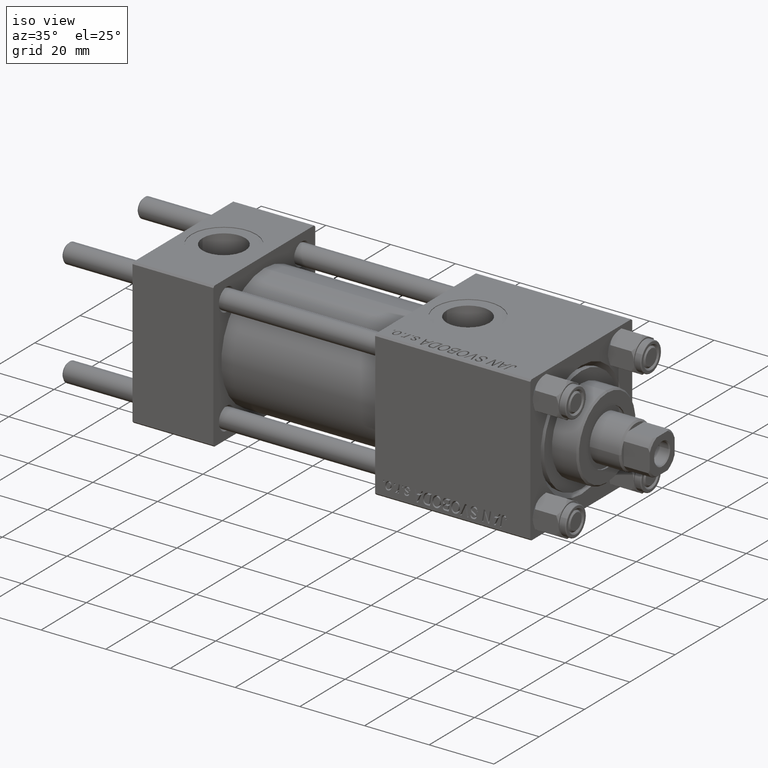
[diagram: clean part render]
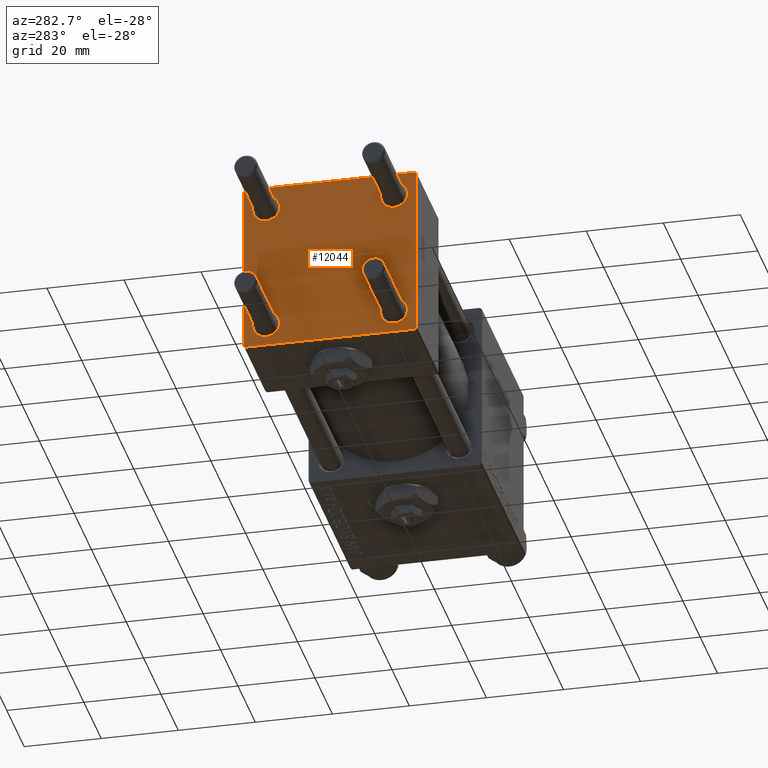
[diagram: tour spotlight — one face highlighted and labeled with its STEP entity id]
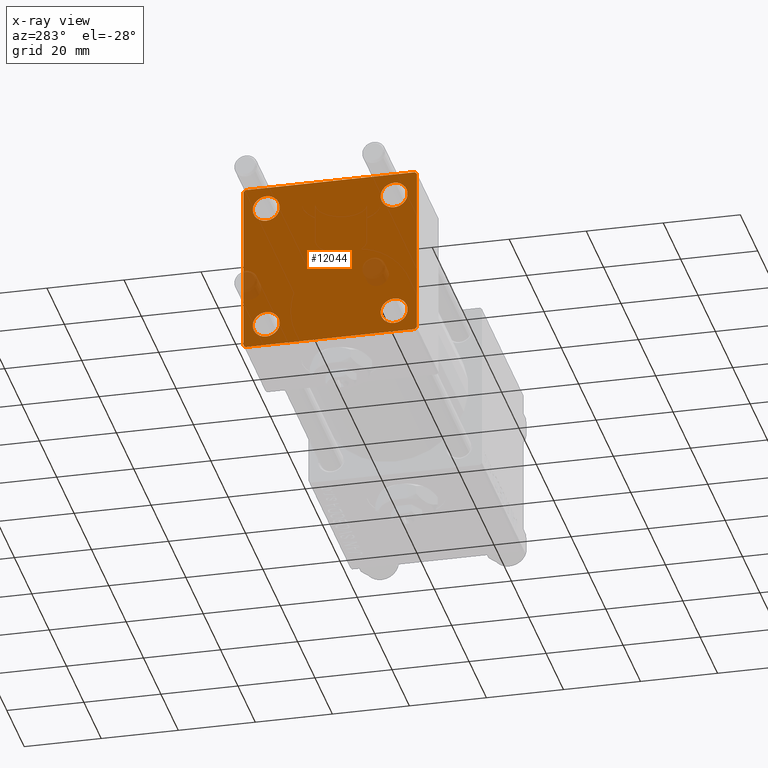
[diagram: x-ray of the same camera — body ghosted, this tour face saturated]
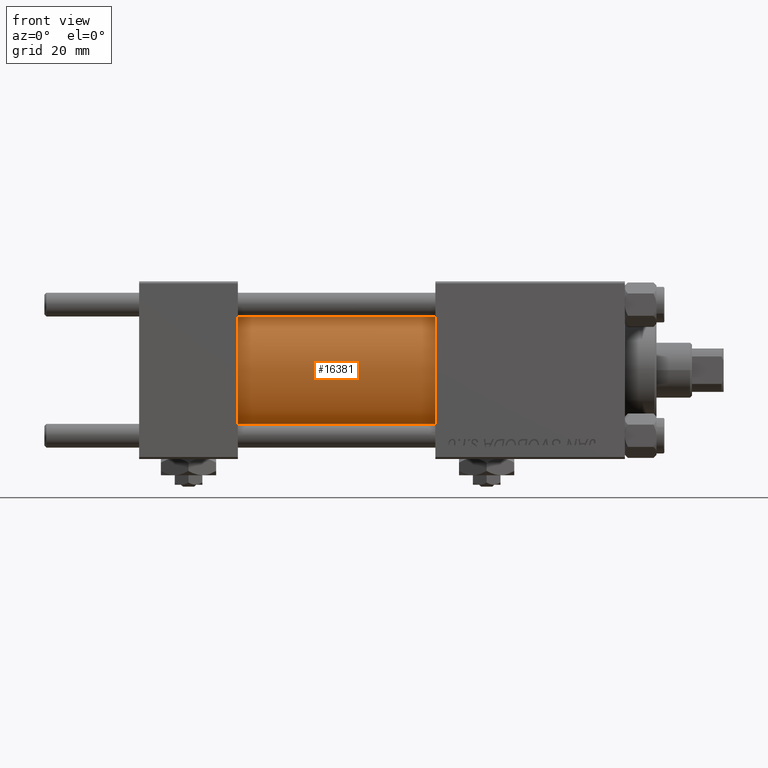
[diagram: tour spotlight — one face highlighted and labeled with its STEP entity id]
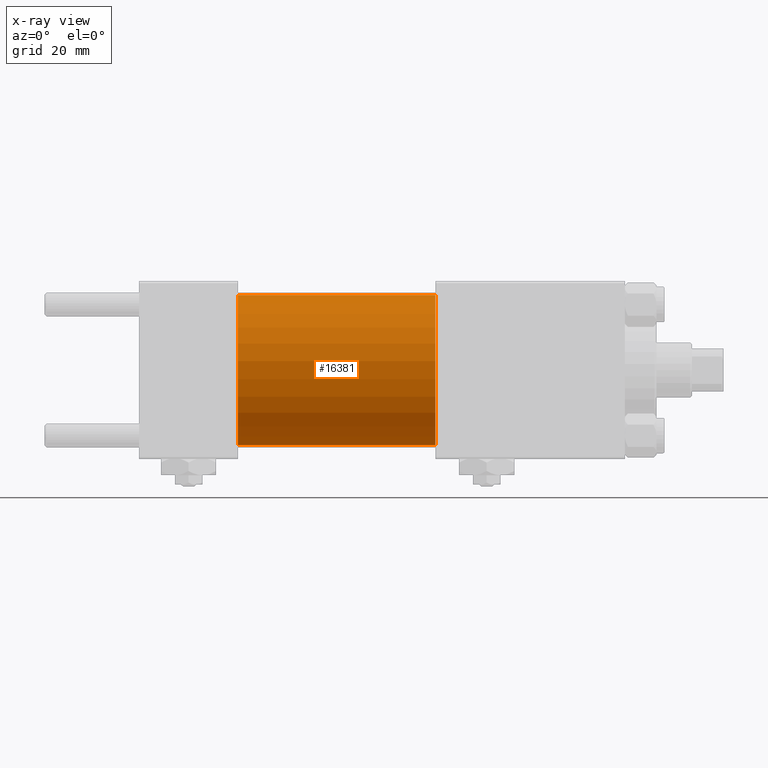
[diagram: x-ray of the same camera — body ghosted, this tour face saturated]
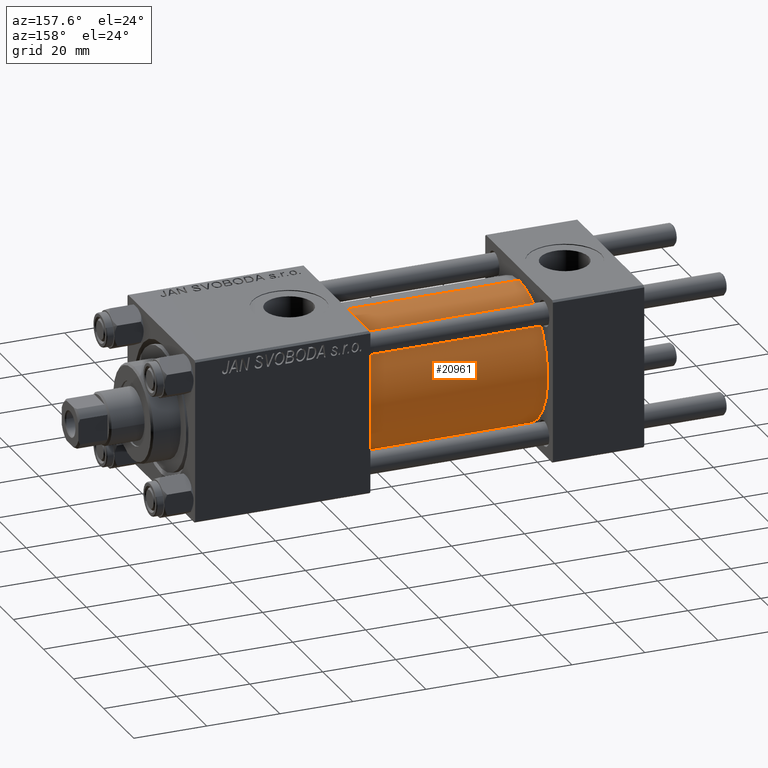
[diagram: tour spotlight — one face highlighted and labeled with its STEP entity id]
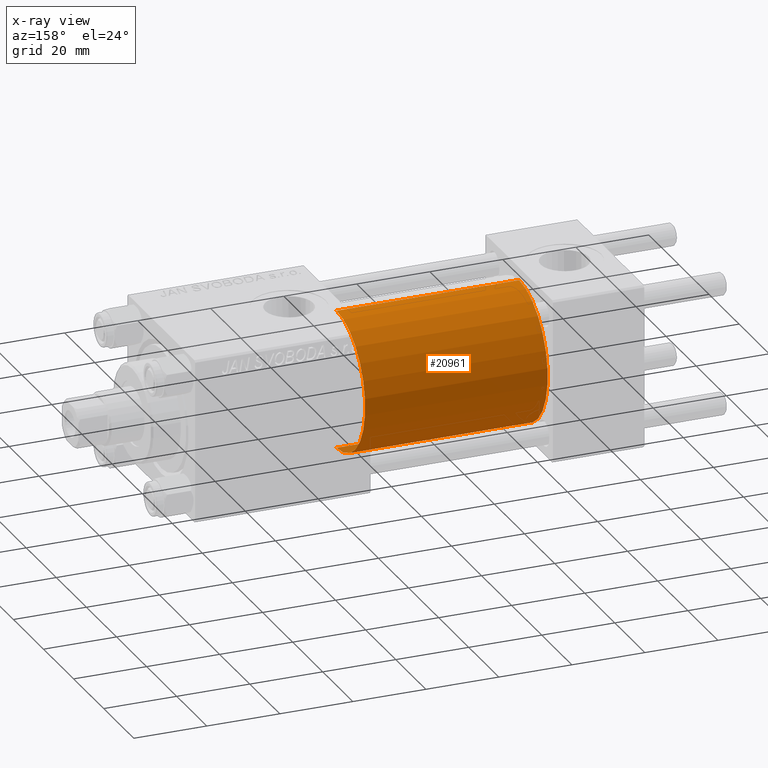
[diagram: x-ray of the same camera — body ghosted, this tour face saturated]
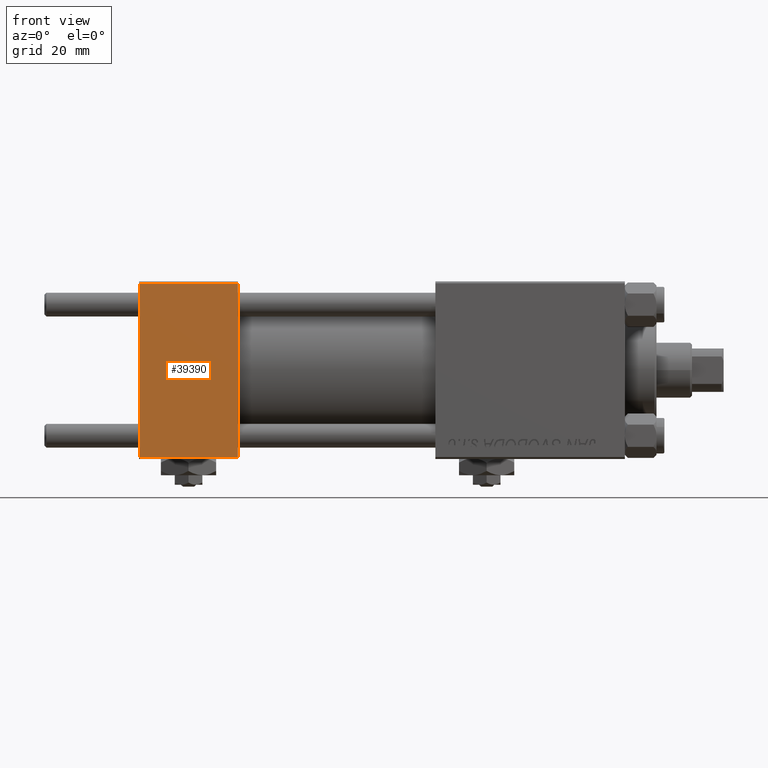
[diagram: tour spotlight — one face highlighted and labeled with its STEP entity id]
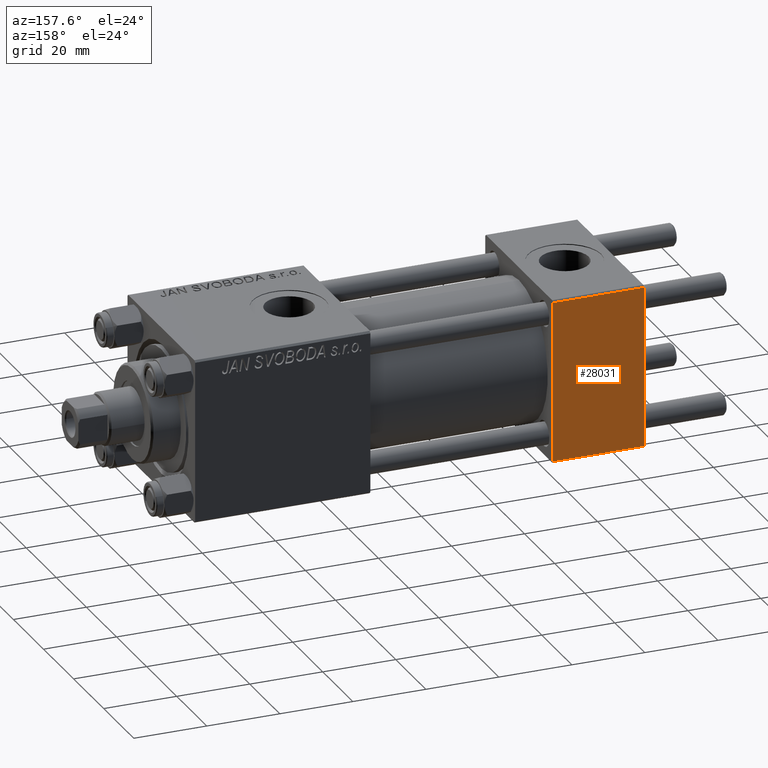
[diagram: tour spotlight — one face highlighted and labeled with its STEP entity id]
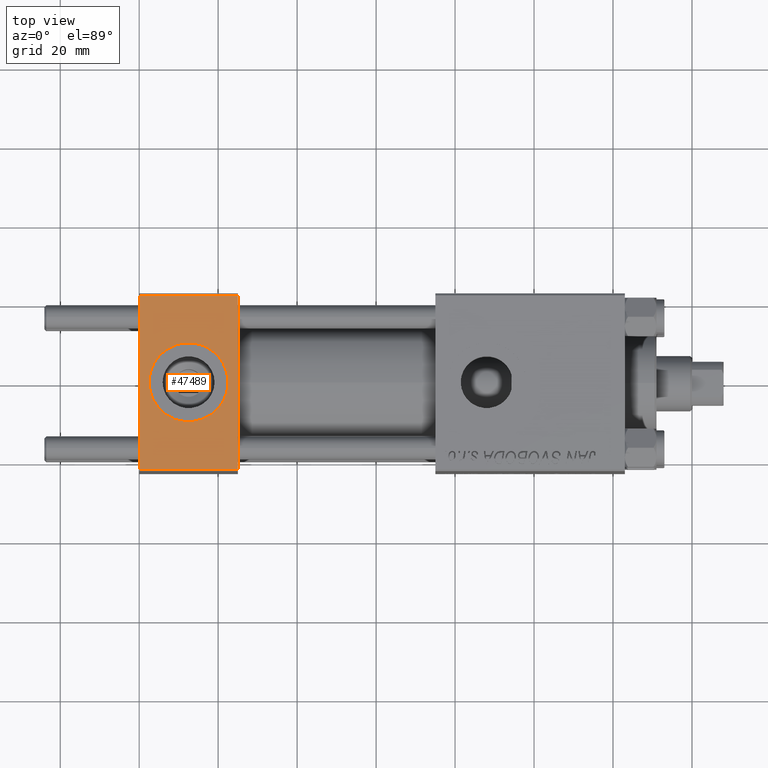
[diagram: tour spotlight — one face highlighted and labeled with its STEP entity id]
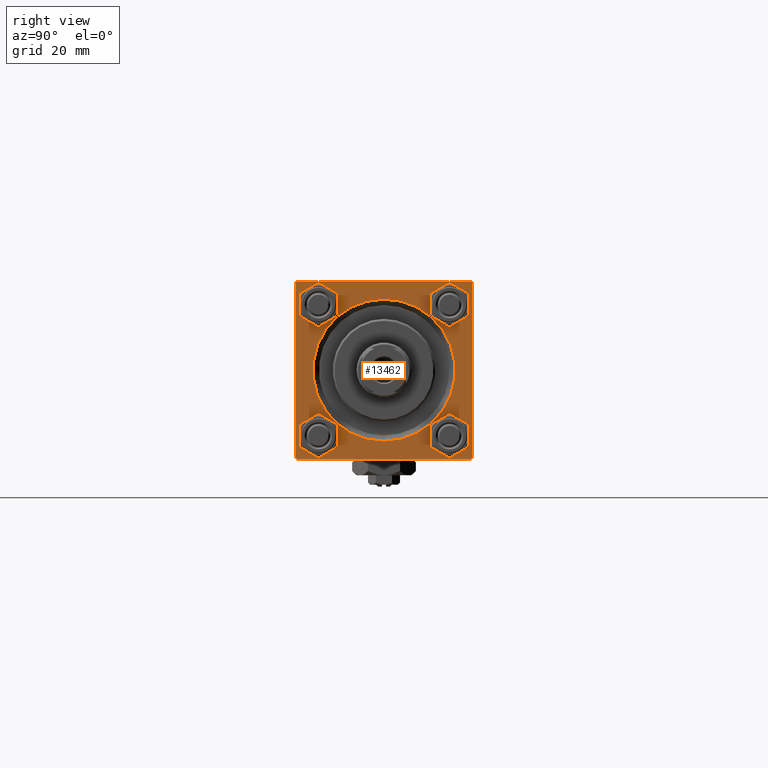
[diagram: tour spotlight — one face highlighted and labeled with its STEP entity id]
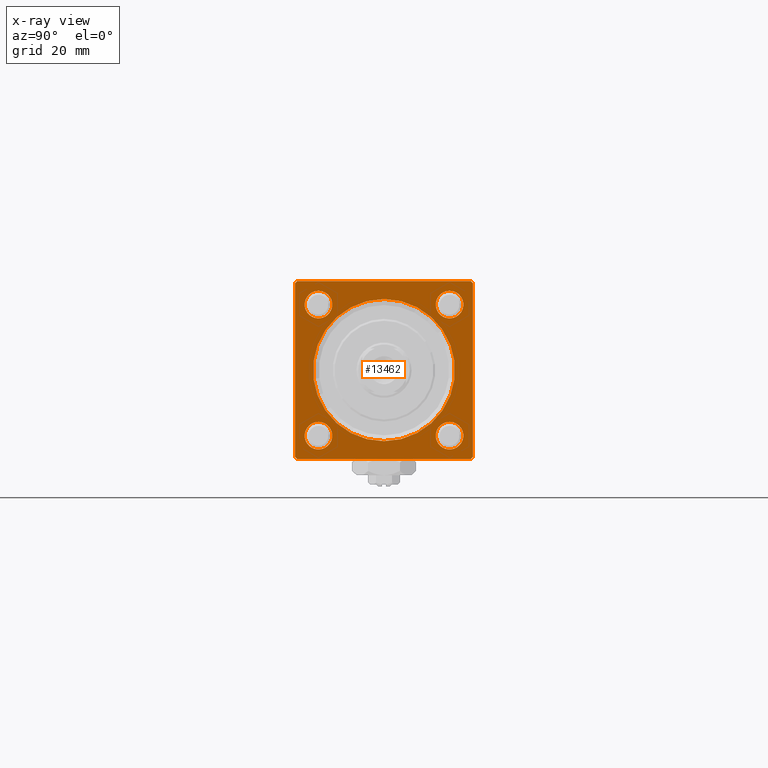
[diagram: x-ray of the same camera — body ghosted, this tour face saturated]
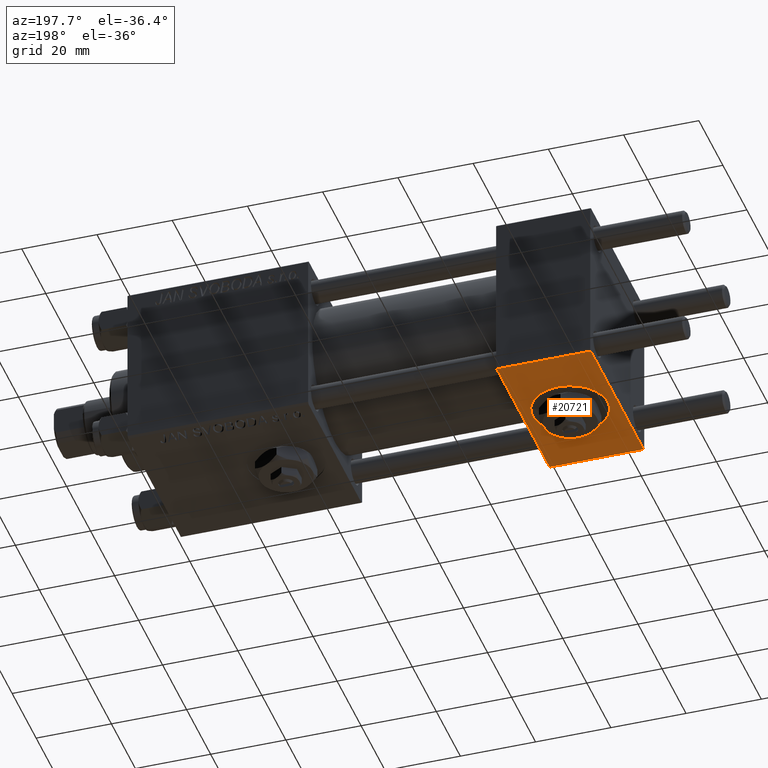
[diagram: tour spotlight — one face highlighted and labeled with its STEP entity id]
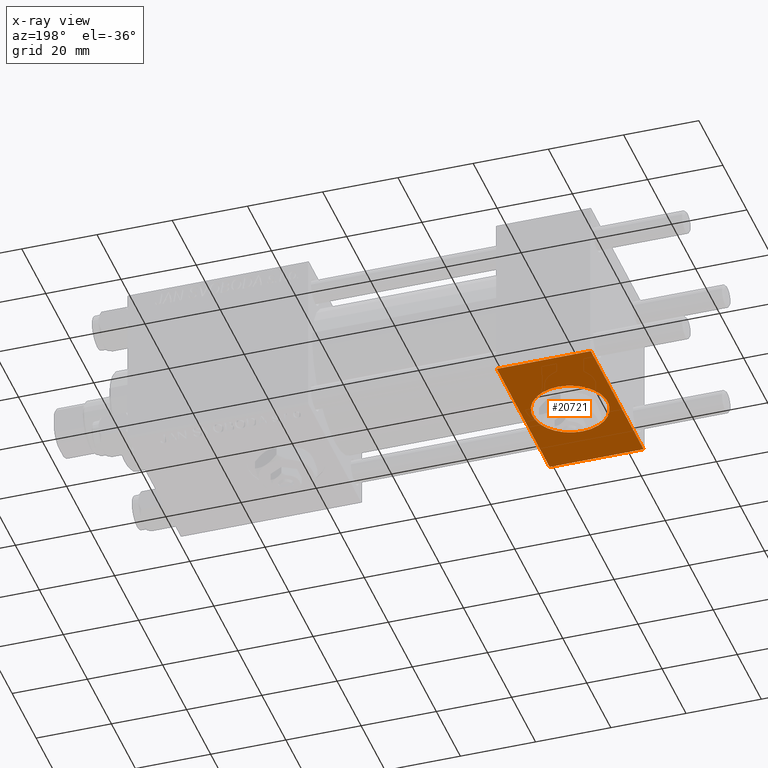
[diagram: x-ray of the same camera — body ghosted, this tour face saturated]
A machine part: a face-by-face anatomy tour. The part has 1232 B-rep faces; the first image is the clean iso view, then the 8 largest visible faces are spotlighted one at a time (largest first), each with its STEP entity span.

Face 1 — auxiliary view, entity #12044. An x-ray twin of the same camera follows (body ghosted, this face saturated) — the face is partly hidden behind the body. In plain terms, the highlighted planar face has unit normal (-1, 0, 0).
Definition (entity closure, byte-faithful):
#1049 = CARTESIAN_POINT ( 'NONE',  ( 0.000000000000000000, 22.50000000000000000, -21.99999999999996803 ) ) ;
#1425 = CARTESIAN_POINT ( 'NONE',  ( 0.000000000000000000, -22.50000000000000000, 22.50000000000000000 ) ) ;
#1604 = CIRCLE ( 'NONE', #21691, 3.499999999999996003 ) ;
#2339 = CARTESIAN_POINT ( 'NONE',  ( 0.000000000000000000, 22.50000000000000000, 22.50000000000000355 ) ) ;
#2547 = FACE_BOUND ( 'NONE', #49725, .T. ) ;
#2747 = CARTESIAN_POINT ( 'NONE',  ( 0.000000000000000000, -22.25000000000014566, -22.24999999999984013 ) ) ;
#2993 = CARTESIAN_POINT ( 'NONE',  ( 0.000000000000000000, 21.99999999999999289, -22.49999999999999645 ) ) ;
#3184 = LINE ( 'NONE', #26034, #12299 ) ;
#3549 = DIRECTION ( 'NONE',  ( 1.000000000000000000, -0.000000000000000000, 0.000000000000000000 ) ) ;
#3587 = VERTEX_POINT ( 'NONE', #28658 ) ;
#3740 = DIRECTION ( 'NONE',  ( 1.000000000000000000, -0.000000000000000000, 0.000000000000000000 ) ) ;
#3852 = EDGE_LOOP ( 'NONE', ( #15114, #42857 ) ) ;
#4041 = ORIENTED_EDGE ( 'NONE', *, *, #4329, .T. ) ;
#4269 = CARTESIAN_POINT ( 'NONE',  ( 0.000000000000000000, 16.59999999999999787, -16.60000000000000497 ) ) ;
#4329 = EDGE_CURVE ( 'NONE', #51466, #25926, #42590, .T. ) ;
#5871 = LINE ( 'NONE', #1425, #30097 ) ;
#5936 = DIRECTION ( 'NONE',  ( 0.000000000000000000, 0.000000000000000000, 1.000000000000000000 ) ) ;
#5973 = VERTEX_POINT ( 'NONE', #37163 ) ;
#6155 = DIRECTION ( 'NONE',  ( 1.000000000000000000, -0.000000000000000000, 0.000000000000000000 ) ) ;
#6885 = CARTESIAN_POINT ( 'NONE',  ( 0.000000000000000000, 16.59999999999999787, 16.60000000000000497 ) ) ;
#7355 = CARTESIAN_POINT ( 'NONE',  ( 0.000000000000000000, -16.59999999999999076, -16.60000000000000853 ) ) ;
#7398 = CARTESIAN_POINT ( 'NONE',  ( 0.000000000000000000, -16.59999999999999076, -13.10000000000001030 ) ) ;
#7952 = ORIENTED_EDGE ( 'NONE', *, *, #44585, .T. ) ;
#8149 = DIRECTION ( 'NONE',  ( 1.000000000000000000, -0.000000000000000000, 0.000000000000000000 ) ) ;
#8641 = FACE_BOUND ( 'NONE', #3852, .T. ) ;
#8797 = CIRCLE ( 'NONE', #28926, 3.499999999999996003 ) ;
#8971 = VECTOR ( 'NONE', #11320, 1000.000000000000000 ) ;
#9011 = DIRECTION ( 'NONE',  ( 0.000000000000000000, 0.000000000000000000, -1.000000000000000000 ) ) ;
#9399 = CIRCLE ( 'NONE', #51319, 3.499999999999996003 ) ;
#9532 = CARTESIAN_POINT ( 'NONE',  ( 0.000000000000000000, -22.50000000000000000, -21.99999999999997158 ) ) ;
#9593 = AXIS2_PLACEMENT_3D ( 'NONE', #40534, #3549, #19545 ) ;
#9815 = AXIS2_PLACEMENT_3D ( 'NONE', #35715, #8149, #24159 ) ;
#9854 = DIRECTION ( 'NONE',  ( 1.000000000000000000, -0.000000000000000000, 0.000000000000000000 ) ) ;
#10005 = CARTESIAN_POINT ( 'NONE',  ( -0.000000000000000000, -22.24999999999984013, 22.25000000000015277 ) ) ;
#10249 = VERTEX_POINT ( 'NONE', #21417 ) ;
#10376 = EDGE_CURVE ( 'NONE', #12619, #10249, #10461, .T. ) ;
#10440 = DIRECTION ( 'NONE',  ( 1.000000000000000000, -0.000000000000000000, 0.000000000000000000 ) ) ;
#10461 = CIRCLE ( 'NONE', #9593, 3.499999999999996003 ) ;
#11320 = DIRECTION ( 'NONE',  ( 0.000000000000000000, 0.000000000000000000, -1.000000000000000000 ) ) ;
#11620 = VECTOR ( 'NONE', #39182, 1000.000000000000000 ) ;
#11893 = EDGE_CURVE ( 'NONE', #3587, #45007, #8797, .T. ) ;
#12044 = ADVANCED_FACE ( 'NONE', ( #41914, #2547, #8641, #30350, #50040 ), #42427, .T. ) ;
#12299 = VECTOR ( 'NONE', #30478, 1000.000000000000114 ) ;
#12619 = VERTEX_POINT ( 'NONE', #30853 ) ;
#12688 = VERTEX_POINT ( 'NONE', #18007 ) ;
#12789 = VERTEX_POINT ( 'NONE', #19554 ) ;
#13691 = EDGE_CURVE ( 'NONE', #34426, #48493, #14297, .T. ) ;
#14019 = EDGE_LOOP ( 'NONE', ( #4041, #44815, #38352, #49643, #27150, #37655, #37682, #22686 ) ) ;
#14297 = LINE ( 'NONE', #2747, #35712 ) ;
#14645 = LINE ( 'NONE', #2339, #27626 ) ;
#15114 = ORIENTED_EDGE ( 'NONE', *, *, #31422, .T. ) ;
#15783 = EDGE_CURVE ( 'NONE', #12789, #51466, #3184, .T. ) ;
#16220 = VERTEX_POINT ( 'NONE', #33772 ) ;
#16259 = DIRECTION ( 'NONE',  ( 1.000000000000000000, -0.000000000000000000, 0.000000000000000000 ) ) ;
#16678 = EDGE_CURVE ( 'NONE', #45007, #3587, #28291, .T. ) ;
#18007 = CARTESIAN_POINT ( 'NONE',  ( 0.000000000000000000, -21.99999999999997868, 22.50000000000000000 ) ) ;
#18251 = VERTEX_POINT ( 'NONE', #23500 ) ;
#18832 = DIRECTION ( 'NONE',  ( 0.000000000000000000, -1.000000000000000000, -7.709882115452476934E-17 ) ) ;
#19545 = DIRECTION ( 'NONE',  ( 0.000000000000000000, 0.000000000000000000, 1.000000000000000000 ) ) ;
#19554 = CARTESIAN_POINT ( 'NONE',  ( 0.000000000000000000, 21.99999999999999289, 22.50000000000000355 ) ) ;
#20264 = CIRCLE ( 'NONE', #35326, 3.499999999999996003 ) ;
#20366 = EDGE_CURVE ( 'NONE', #5973, #44806, #1604, .T. ) ;
#21210 = CARTESIAN_POINT ( 'NONE',  ( 0.000000000000000000, 16.59999999999999787, -16.60000000000000497 ) ) ;
#21417 = CARTESIAN_POINT ( 'NONE',  ( 0.000000000000000000, -16.59999999999999076, 13.10000000000001030 ) ) ;
#21691 = AXIS2_PLACEMENT_3D ( 'NONE', #6885, #38131, #34195 ) ;
#22686 = ORIENTED_EDGE ( 'NONE', *, *, #15783, .T. ) ;
#22912 = DIRECTION ( 'NONE',  ( 0.000000000000000000, -0.7071067811865426878, 0.7071067811865524577 ) ) ;
#23380 = EDGE_CURVE ( 'NONE', #25926, #32500, #43375, .T. ) ;
#23418 = DIRECTION ( 'NONE',  ( 0.000000000000000000, 0.000000000000000000, 1.000000000000000000 ) ) ;
#23500 = CARTESIAN_POINT ( 'NONE',  ( 0.000000000000000000, -22.50000000000000000, 22.00000000000000000 ) ) ;
#23896 = VERTEX_POINT ( 'NONE', #44345 ) ;
#24159 = DIRECTION ( 'NONE',  ( 0.000000000000000000, 0.000000000000000000, 1.000000000000000000 ) ) ;
#24317 = ORIENTED_EDGE ( 'NONE', *, *, #16678, .T. ) ;
#25035 = CARTESIAN_POINT ( 'NONE',  ( 0.000000000000000000, 22.50000000000000000, -22.49999999999999645 ) ) ;
#25682 = DIRECTION ( 'NONE',  ( 0.000000000000000000, 0.000000000000000000, 1.000000000000000000 ) ) ;
#25838 = AXIS2_PLACEMENT_3D ( 'NONE', #45814, #9854, #5936 ) ;
#25926 = VERTEX_POINT ( 'NONE', #1049 ) ;
#26034 = CARTESIAN_POINT ( 'NONE',  ( 0.000000000000000000, 22.24999999999999645, 22.24999999999999645 ) ) ;
#26892 = EDGE_LOOP ( 'NONE', ( #37123, #7952 ) ) ;
#27150 = ORIENTED_EDGE ( 'NONE', *, *, #46691, .F. ) ;
#27626 = VECTOR ( 'NONE', #18832, 1000.000000000000000 ) ;
#28058 = EDGE_CURVE ( 'NONE', #18251, #12688, #38857, .T. ) ;
#28291 = CIRCLE ( 'NONE', #9815, 3.499999999999996003 ) ;
#28599 = CARTESIAN_POINT ( 'NONE',  ( 0.000000000000000000, 0.000000000000000000, 0.000000000000000000 ) ) ;
#28658 = CARTESIAN_POINT ( 'NONE',  ( 0.000000000000000000, -16.59999999999999076, -20.10000000000000497 ) ) ;
#28926 = AXIS2_PLACEMENT_3D ( 'NONE', #7355, #16259, #32273 ) ;
#29330 = DIRECTION ( 'NONE',  ( 0.000000000000000000, 0.000000000000000000, 1.000000000000000000 ) ) ;
#30097 = VECTOR ( 'NONE', #9011, 1000.000000000000000 ) ;
#30350 = FACE_BOUND ( 'NONE', #49548, .T. ) ;
#30478 = DIRECTION ( 'NONE',  ( 0.000000000000000000, 0.7071067811865474617, -0.7071067811865474617 ) ) ;
#30488 = EDGE_CURVE ( 'NONE', #32500, #34426, #40522, .T. ) ;
#30729 = DIRECTION ( 'NONE',  ( -0.000000000000000000, 0.7071067811865525687, 0.7071067811865425767 ) ) ;
#30853 = CARTESIAN_POINT ( 'NONE',  ( 0.000000000000000000, -16.59999999999999076, 20.10000000000000853 ) ) ;
#31422 = EDGE_CURVE ( 'NONE', #16220, #23896, #20264, .T. ) ;
#32273 = DIRECTION ( 'NONE',  ( 0.000000000000000000, 0.000000000000000000, 1.000000000000000000 ) ) ;
#32450 = EDGE_CURVE ( 'NONE', #44806, #5973, #9399, .T. ) ;
#32500 = VERTEX_POINT ( 'NONE', #2993 ) ;
#32990 = CARTESIAN_POINT ( 'NONE',  ( 0.000000000000000000, 16.59999999999999787, 16.60000000000000497 ) ) ;
#33170 = AXIS2_PLACEMENT_3D ( 'NONE', #28599, #46358, #37000 ) ;
#33772 = CARTESIAN_POINT ( 'NONE',  ( 0.000000000000000000, 16.59999999999999787, -13.10000000000000675 ) ) ;
#34195 = DIRECTION ( 'NONE',  ( 0.000000000000000000, 0.000000000000000000, 1.000000000000000000 ) ) ;
#34426 = VERTEX_POINT ( 'NONE', #51009 ) ;
#35326 = AXIS2_PLACEMENT_3D ( 'NONE', #4269, #3740, #23418 ) ;
#35712 = VECTOR ( 'NONE', #22912, 1000.000000000000000 ) ;
#35715 = CARTESIAN_POINT ( 'NONE',  ( 0.000000000000000000, -16.59999999999999076, -16.60000000000000853 ) ) ;
#35978 = CIRCLE ( 'NONE', #46063, 3.499999999999996003 ) ;
#36148 = VECTOR ( 'NONE', #41051, 1000.000000000000000 ) ;
#37000 = DIRECTION ( 'NONE',  ( -0.000000000000000000, 0.000000000000000000, 1.000000000000000000 ) ) ;
#37123 = ORIENTED_EDGE ( 'NONE', *, *, #10376, .T. ) ;
#37163 = CARTESIAN_POINT ( 'NONE',  ( 0.000000000000000000, 16.59999999999999787, 20.10000000000000142 ) ) ;
#37630 = ORIENTED_EDGE ( 'NONE', *, *, #20366, .T. ) ;
#37655 = ORIENTED_EDGE ( 'NONE', *, *, #28058, .T. ) ;
#37682 = ORIENTED_EDGE ( 'NONE', *, *, #48038, .F. ) ;
#38131 = DIRECTION ( 'NONE',  ( 1.000000000000000000, -0.000000000000000000, 0.000000000000000000 ) ) ;
#38352 = ORIENTED_EDGE ( 'NONE', *, *, #30488, .T. ) ;
#38857 = LINE ( 'NONE', #10005, #44473 ) ;
#39182 = DIRECTION ( 'NONE',  ( -0.000000000000000000, -0.7071067811865426878, -0.7071067811865524577 ) ) ;
#40522 = LINE ( 'NONE', #25035, #36148 ) ;
#40534 = CARTESIAN_POINT ( 'NONE',  ( 0.000000000000000000, -16.59999999999999076, 16.60000000000000853 ) ) ;
#41051 = DIRECTION ( 'NONE',  ( 0.000000000000000000, -1.000000000000000000, -2.312964634635742957E-16 ) ) ;
#41052 = CARTESIAN_POINT ( 'NONE',  ( 0.000000000000000000, 16.59999999999999787, 13.10000000000000675 ) ) ;
#41914 = FACE_BOUND ( 'NONE', #26892, .T. ) ;
#42427 = PLANE ( 'NONE',  #33170 ) ;
#42590 = LINE ( 'NONE', #47271, #8971 ) ;
#42857 = ORIENTED_EDGE ( 'NONE', *, *, #47262, .T. ) ;
#43375 = LINE ( 'NONE', #47572, #11620 ) ;
#43458 = ORIENTED_EDGE ( 'NONE', *, *, #32450, .T. ) ;
#44345 = CARTESIAN_POINT ( 'NONE',  ( 0.000000000000000000, 16.59999999999999787, -20.10000000000000142 ) ) ;
#44473 = VECTOR ( 'NONE', #30729, 999.9999999999998863 ) ;
#44585 = EDGE_CURVE ( 'NONE', #10249, #12619, #48451, .T. ) ;
#44806 = VERTEX_POINT ( 'NONE', #41052 ) ;
#44815 = ORIENTED_EDGE ( 'NONE', *, *, #23380, .T. ) ;
#45007 = VERTEX_POINT ( 'NONE', #7398 ) ;
#45495 = ORIENTED_EDGE ( 'NONE', *, *, #11893, .T. ) ;
#45814 = CARTESIAN_POINT ( 'NONE',  ( 0.000000000000000000, -16.59999999999999076, 16.60000000000000853 ) ) ;
#46063 = AXIS2_PLACEMENT_3D ( 'NONE', #21210, #10440, #25682 ) ;
#46358 = DIRECTION ( 'NONE',  ( -1.000000000000000000, 0.000000000000000000, -0.000000000000000000 ) ) ;
#46691 = EDGE_CURVE ( 'NONE', #18251, #48493, #5871, .T. ) ;
#47262 = EDGE_CURVE ( 'NONE', #23896, #16220, #35978, .T. ) ;
#47271 = CARTESIAN_POINT ( 'NONE',  ( 0.000000000000000000, 22.50000000000000000, 22.50000000000000355 ) ) ;
#47572 = CARTESIAN_POINT ( 'NONE',  ( 0.000000000000000000, 22.25000000000014566, -22.24999999999984013 ) ) ;
#48038 = EDGE_CURVE ( 'NONE', #12789, #12688, #14645, .T. ) ;
#48451 = CIRCLE ( 'NONE', #25838, 3.499999999999996003 ) ;
#48493 = VERTEX_POINT ( 'NONE', #9532 ) ;
#49548 = EDGE_LOOP ( 'NONE', ( #37630, #43458 ) ) ;
#49643 = ORIENTED_EDGE ( 'NONE', *, *, #13691, .T. ) ;
#49725 = EDGE_LOOP ( 'NONE', ( #24317, #45495 ) ) ;
#50040 = FACE_OUTER_BOUND ( 'NONE', #14019, .T. ) ;
#51009 = CARTESIAN_POINT ( 'NONE',  ( 0.000000000000000000, -21.99999999999997158, -22.50000000000000711 ) ) ;
#51319 = AXIS2_PLACEMENT_3D ( 'NONE', #32990, #6155, #29330 ) ;
#51401 = CARTESIAN_POINT ( 'NONE',  ( 0.000000000000000000, 22.50000000000000000, 21.99999999999999645 ) ) ;
#51466 = VERTEX_POINT ( 'NONE', #51401 ) ;

Face 2 — front view, entity #16381. An x-ray twin of the same camera follows (body ghosted, this face saturated) — the face is partly hidden behind the body. In plain terms, the highlighted cylindrical surface (partial cylindrical patch) has radius 19 mm, axis along (-1, -0, -0).
Definition (entity closure, byte-faithful):
#518 = CIRCLE ( 'NONE', #23155, 19.00000000000000000 ) ;
#1092 = ORIENTED_EDGE ( 'NONE', *, *, #16145, .T. ) ;
#1455 = CIRCLE ( 'NONE', #30773, 19.00000000000000000 ) ;
#1699 = CARTESIAN_POINT ( 'NONE',  ( 75.00000000000001421, 0.000000000000000000, 19.00000000000000000 ) ) ;
#3197 = CARTESIAN_POINT ( 'NONE',  ( 75.00000000000001421, 2.326828918379970970E-15, -19.00000000000000000 ) ) ;
#5442 = CARTESIAN_POINT ( 'NONE',  ( 25.00000000000000000, 0.000000000000000000, 0.000000000000000000 ) ) ;
#5618 = DIRECTION ( 'NONE',  ( -1.000000000000000000, -0.000000000000000000, -0.000000000000000000 ) ) ;
#7500 = FACE_OUTER_BOUND ( 'NONE', #20530, .T. ) ;
#7805 = CARTESIAN_POINT ( 'NONE',  ( 25.00000000000000000, 0.000000000000000000, 19.00000000000000000 ) ) ;
#8121 = CARTESIAN_POINT ( 'NONE',  ( 75.00000000000001421, 2.326828918379970970E-15, -19.00000000000000000 ) ) ;
#11554 = VECTOR ( 'NONE', #5618, 1000.000000000000000 ) ;
#16145 = EDGE_CURVE ( 'NONE', #24176, #51698, #1455, .T. ) ;
#16312 = CARTESIAN_POINT ( 'NONE',  ( 75.00000000000001421, 0.000000000000000000, 19.00000000000000000 ) ) ;
#16381 = ADVANCED_FACE ( 'NONE', ( #7500 ), #35578, .T. ) ;
#17583 = VECTOR ( 'NONE', #31782, 1000.000000000000000 ) ;
#18025 = CARTESIAN_POINT ( 'NONE',  ( 25.00000000000000000, 2.326828918379970970E-15, -19.00000000000000000 ) ) ;
#20530 = EDGE_LOOP ( 'NONE', ( #34571, #37621, #48798, #1092 ) ) ;
#22493 = EDGE_CURVE ( 'NONE', #27300, #51698, #31261, .T. ) ;
#22973 = DIRECTION ( 'NONE',  ( 0.000000000000000000, 0.000000000000000000, 1.000000000000000000 ) ) ;
#23155 = AXIS2_PLACEMENT_3D ( 'NONE', #48999, #41139, #49270 ) ;
#24176 = VERTEX_POINT ( 'NONE', #7805 ) ;
#24350 = DIRECTION ( 'NONE',  ( 0.000000000000000000, 0.000000000000000000, 1.000000000000000000 ) ) ;
#25388 = DIRECTION ( 'NONE',  ( 1.000000000000000000, -0.000000000000000000, 0.000000000000000000 ) ) ;
#26981 = VERTEX_POINT ( 'NONE', #16312 ) ;
#27300 = VERTEX_POINT ( 'NONE', #8121 ) ;
#29945 = AXIS2_PLACEMENT_3D ( 'NONE', #51586, #47653, #22973 ) ;
#30773 = AXIS2_PLACEMENT_3D ( 'NONE', #5442, #25388, #24350 ) ;
#31261 = LINE ( 'NONE', #3197, #17583 ) ;
#31782 = DIRECTION ( 'NONE',  ( -1.000000000000000000, -0.000000000000000000, -0.000000000000000000 ) ) ;
#34571 = ORIENTED_EDGE ( 'NONE', *, *, #22493, .F. ) ;
#35578 = CYLINDRICAL_SURFACE ( 'NONE', #29945, 19.00000000000000000 ) ;
#37109 = LINE ( 'NONE', #1699, #11554 ) ;
#37621 = ORIENTED_EDGE ( 'NONE', *, *, #39736, .F. ) ;
#39736 = EDGE_CURVE ( 'NONE', #26981, #27300, #518, .T. ) ;
#41139 = DIRECTION ( 'NONE',  ( 1.000000000000000000, 0.000000000000000000, 0.000000000000000000 ) ) ;
#44773 = EDGE_CURVE ( 'NONE', #26981, #24176, #37109, .T. ) ;
#47653 = DIRECTION ( 'NONE',  ( -1.000000000000000000, -0.000000000000000000, -0.000000000000000000 ) ) ;
#48798 = ORIENTED_EDGE ( 'NONE', *, *, #44773, .T. ) ;
#48999 = CARTESIAN_POINT ( 'NONE',  ( 75.00000000000001421, 0.000000000000000000, 0.000000000000000000 ) ) ;
#49270 = DIRECTION ( 'NONE',  ( 0.000000000000000000, 0.000000000000000000, -1.000000000000000000 ) ) ;
#51586 = CARTESIAN_POINT ( 'NONE',  ( 75.00000000000001421, 0.000000000000000000, 0.000000000000000000 ) ) ;
#51698 = VERTEX_POINT ( 'NONE', #18025 ) ;

Face 3 — auxiliary view, entity #20961. An x-ray twin of the same camera follows (body ghosted, this face saturated) — the face is partly hidden behind the body. In plain terms, the highlighted cylindrical surface (partial cylindrical patch) has radius 19 mm, axis along (-1, -0, -0).
Definition (entity closure, byte-faithful):
#680 = DIRECTION ( 'NONE',  ( 1.000000000000000000, -0.000000000000000000, 0.000000000000000000 ) ) ;
#1699 = CARTESIAN_POINT ( 'NONE',  ( 75.00000000000001421, 0.000000000000000000, 19.00000000000000000 ) ) ;
#3197 = CARTESIAN_POINT ( 'NONE',  ( 75.00000000000001421, 2.326828918379970970E-15, -19.00000000000000000 ) ) ;
#4677 = EDGE_CURVE ( 'NONE', #27300, #26981, #27570, .T. ) ;
#5618 = DIRECTION ( 'NONE',  ( -1.000000000000000000, -0.000000000000000000, -0.000000000000000000 ) ) ;
#7805 = CARTESIAN_POINT ( 'NONE',  ( 25.00000000000000000, 0.000000000000000000, 19.00000000000000000 ) ) ;
#8121 = CARTESIAN_POINT ( 'NONE',  ( 75.00000000000001421, 2.326828918379970970E-15, -19.00000000000000000 ) ) ;
#11554 = VECTOR ( 'NONE', #5618, 1000.000000000000000 ) ;
#12561 = AXIS2_PLACEMENT_3D ( 'NONE', #28743, #680, #32419 ) ;
#14943 = CARTESIAN_POINT ( 'NONE',  ( 75.00000000000001421, 0.000000000000000000, 0.000000000000000000 ) ) ;
#15886 = CIRCLE ( 'NONE', #12561, 19.00000000000000000 ) ;
#16312 = CARTESIAN_POINT ( 'NONE',  ( 75.00000000000001421, 0.000000000000000000, 19.00000000000000000 ) ) ;
#17583 = VECTOR ( 'NONE', #31782, 1000.000000000000000 ) ;
#17662 = ORIENTED_EDGE ( 'NONE', *, *, #4677, .F. ) ;
#17935 = EDGE_LOOP ( 'NONE', ( #17662, #36044, #47265, #33813 ) ) ;
#18025 = CARTESIAN_POINT ( 'NONE',  ( 25.00000000000000000, 2.326828918379970970E-15, -19.00000000000000000 ) ) ;
#19170 = DIRECTION ( 'NONE',  ( -1.000000000000000000, -0.000000000000000000, -0.000000000000000000 ) ) ;
#20961 = ADVANCED_FACE ( 'NONE', ( #30991 ), #35192, .T. ) ;
#22493 = EDGE_CURVE ( 'NONE', #27300, #51698, #31261, .T. ) ;
#23628 = CARTESIAN_POINT ( 'NONE',  ( 75.00000000000001421, 0.000000000000000000, 0.000000000000000000 ) ) ;
#24176 = VERTEX_POINT ( 'NONE', #7805 ) ;
#26981 = VERTEX_POINT ( 'NONE', #16312 ) ;
#27300 = VERTEX_POINT ( 'NONE', #8121 ) ;
#27570 = CIRCLE ( 'NONE', #42646, 19.00000000000000000 ) ;
#28743 = CARTESIAN_POINT ( 'NONE',  ( 25.00000000000000000, 0.000000000000000000, 0.000000000000000000 ) ) ;
#30952 = DIRECTION ( 'NONE',  ( 1.000000000000000000, 0.000000000000000000, 0.000000000000000000 ) ) ;
#30991 = FACE_OUTER_BOUND ( 'NONE', #17935, .T. ) ;
#31261 = LINE ( 'NONE', #3197, #17583 ) ;
#31782 = DIRECTION ( 'NONE',  ( -1.000000000000000000, -0.000000000000000000, -0.000000000000000000 ) ) ;
#32419 = DIRECTION ( 'NONE',  ( 0.000000000000000000, 0.000000000000000000, 1.000000000000000000 ) ) ;
#33813 = ORIENTED_EDGE ( 'NONE', *, *, #44773, .F. ) ;
#35192 = CYLINDRICAL_SURFACE ( 'NONE', #35968, 19.00000000000000000 ) ;
#35968 = AXIS2_PLACEMENT_3D ( 'NONE', #23628, #19170, #51202 ) ;
#36044 = ORIENTED_EDGE ( 'NONE', *, *, #22493, .T. ) ;
#37109 = LINE ( 'NONE', #1699, #11554 ) ;
#42646 = AXIS2_PLACEMENT_3D ( 'NONE', #14943, #30952, #46966 ) ;
#44773 = EDGE_CURVE ( 'NONE', #26981, #24176, #37109, .T. ) ;
#46966 = DIRECTION ( 'NONE',  ( 0.000000000000000000, 0.000000000000000000, -1.000000000000000000 ) ) ;
#47265 = ORIENTED_EDGE ( 'NONE', *, *, #51782, .T. ) ;
#51202 = DIRECTION ( 'NONE',  ( 0.000000000000000000, 0.000000000000000000, 1.000000000000000000 ) ) ;
#51698 = VERTEX_POINT ( 'NONE', #18025 ) ;
#51782 = EDGE_CURVE ( 'NONE', #51698, #24176, #15886, .T. ) ;

Face 4 — front view, entity #39390. In plain terms, the highlighted planar face has unit normal (0, 1, 0).
Definition (entity closure, byte-faithful):
#440 = ORIENTED_EDGE ( 'NONE', *, *, #46691, .T. ) ;
#483 = VECTOR ( 'NONE', #16601, 1000.000000000000000 ) ;
#1391 = AXIS2_PLACEMENT_3D ( 'NONE', #14214, #46235, #43054 ) ;
#1425 = CARTESIAN_POINT ( 'NONE',  ( 0.000000000000000000, -22.50000000000000000, 22.50000000000000000 ) ) ;
#1714 = VERTEX_POINT ( 'NONE', #15716 ) ;
#2197 = DIRECTION ( 'NONE',  ( 0.000000000000000000, 0.000000000000000000, -1.000000000000000000 ) ) ;
#5784 = VECTOR ( 'NONE', #2197, 1000.000000000000000 ) ;
#5871 = LINE ( 'NONE', #1425, #30097 ) ;
#8061 = CARTESIAN_POINT ( 'NONE',  ( 25.00000000000000000, -22.50000000000000000, 22.00000000000000000 ) ) ;
#9011 = DIRECTION ( 'NONE',  ( 0.000000000000000000, 0.000000000000000000, -1.000000000000000000 ) ) ;
#9532 = CARTESIAN_POINT ( 'NONE',  ( 0.000000000000000000, -22.50000000000000000, -21.99999999999997158 ) ) ;
#10262 = CARTESIAN_POINT ( 'NONE',  ( 25.00000000000000000, -22.50000000000000000, -21.99999999999998579 ) ) ;
#14214 = CARTESIAN_POINT ( 'NONE',  ( 25.00000000000000000, -22.50000000000000000, 22.50000000000000000 ) ) ;
#15716 = CARTESIAN_POINT ( 'NONE',  ( 25.00000000000000000, -22.50000000000000000, -21.99999999999997158 ) ) ;
#16482 = ORIENTED_EDGE ( 'NONE', *, *, #34482, .T. ) ;
#16601 = DIRECTION ( 'NONE',  ( -1.000000000000000000, 0.000000000000000000, 0.000000000000000000 ) ) ;
#17919 = LINE ( 'NONE', #26580, #5784 ) ;
#18251 = VERTEX_POINT ( 'NONE', #23500 ) ;
#20380 = EDGE_CURVE ( 'NONE', #38915, #1714, #17919, .T. ) ;
#23500 = CARTESIAN_POINT ( 'NONE',  ( 0.000000000000000000, -22.50000000000000000, 22.00000000000000000 ) ) ;
#26580 = CARTESIAN_POINT ( 'NONE',  ( 25.00000000000000000, -22.50000000000000000, 22.50000000000000000 ) ) ;
#27732 = EDGE_LOOP ( 'NONE', ( #440, #38519, #35095, #16482 ) ) ;
#30097 = VECTOR ( 'NONE', #9011, 1000.000000000000000 ) ;
#30917 = VECTOR ( 'NONE', #42280, 1000.000000000000000 ) ;
#32880 = CARTESIAN_POINT ( 'NONE',  ( 25.00000000000000000, -22.50000000000000000, 22.00000000000000000 ) ) ;
#34482 = EDGE_CURVE ( 'NONE', #38915, #18251, #40251, .T. ) ;
#34920 = FACE_OUTER_BOUND ( 'NONE', #27732, .T. ) ;
#35095 = ORIENTED_EDGE ( 'NONE', *, *, #20380, .F. ) ;
#38519 = ORIENTED_EDGE ( 'NONE', *, *, #49706, .T. ) ;
#38915 = VERTEX_POINT ( 'NONE', #8061 ) ;
#39390 = ADVANCED_FACE ( 'NONE', ( #34920 ), #50682, .F. ) ;
#40251 = LINE ( 'NONE', #32880, #483 ) ;
#42280 = DIRECTION ( 'NONE',  ( 1.000000000000000000, 0.000000000000000000, 0.000000000000000000 ) ) ;
#43054 = DIRECTION ( 'NONE',  ( 0.000000000000000000, -0.000000000000000000, 1.000000000000000000 ) ) ;
#46225 = LINE ( 'NONE', #10262, #30917 ) ;
#46235 = DIRECTION ( 'NONE',  ( -0.000000000000000000, 1.000000000000000000, 0.000000000000000000 ) ) ;
#46691 = EDGE_CURVE ( 'NONE', #18251, #48493, #5871, .T. ) ;
#48493 = VERTEX_POINT ( 'NONE', #9532 ) ;
#49706 = EDGE_CURVE ( 'NONE', #48493, #1714, #46225, .T. ) ;
#50682 = PLANE ( 'NONE',  #1391 ) ;

Face 5 — auxiliary view, entity #28031. In plain terms, the highlighted planar face has unit normal (0, 1, 0).
Definition (entity closure, byte-faithful):
#798 = EDGE_CURVE ( 'NONE', #51466, #25763, #34357, .T. ) ;
#830 = EDGE_CURVE ( 'NONE', #19737, #25926, #14419, .T. ) ;
#1049 = CARTESIAN_POINT ( 'NONE',  ( 0.000000000000000000, 22.50000000000000000, -21.99999999999996803 ) ) ;
#2977 = VECTOR ( 'NONE', #21370, 1000.000000000000000 ) ;
#4329 = EDGE_CURVE ( 'NONE', #51466, #25926, #42590, .T. ) ;
#8424 = AXIS2_PLACEMENT_3D ( 'NONE', #41770, #17883, #22061 ) ;
#8489 = ORIENTED_EDGE ( 'NONE', *, *, #798, .T. ) ;
#8971 = VECTOR ( 'NONE', #11320, 1000.000000000000000 ) ;
#11320 = DIRECTION ( 'NONE',  ( 0.000000000000000000, 0.000000000000000000, -1.000000000000000000 ) ) ;
#12402 = EDGE_CURVE ( 'NONE', #25763, #19737, #41331, .T. ) ;
#12710 = EDGE_LOOP ( 'NONE', ( #37235, #31234, #29086, #8489 ) ) ;
#13892 = DIRECTION ( 'NONE',  ( -1.000000000000000000, 0.000000000000000000, 0.000000000000000000 ) ) ;
#14419 = LINE ( 'NONE', #46687, #18082 ) ;
#17883 = DIRECTION ( 'NONE',  ( -0.000000000000000000, 1.000000000000000000, 0.000000000000000000 ) ) ;
#18082 = VECTOR ( 'NONE', #13892, 1000.000000000000000 ) ;
#19737 = VERTEX_POINT ( 'NONE', #36427 ) ;
#21370 = DIRECTION ( 'NONE',  ( 0.000000000000000000, 0.000000000000000000, -1.000000000000000000 ) ) ;
#22061 = DIRECTION ( 'NONE',  ( 0.000000000000000000, -0.000000000000000000, 1.000000000000000000 ) ) ;
#25763 = VERTEX_POINT ( 'NONE', #41789 ) ;
#25926 = VERTEX_POINT ( 'NONE', #1049 ) ;
#26488 = CARTESIAN_POINT ( 'NONE',  ( 25.00000000000000000, 22.50000000000000000, 21.99999999999999645 ) ) ;
#28031 = ADVANCED_FACE ( 'NONE', ( #42286 ), #42811, .T. ) ;
#29086 = ORIENTED_EDGE ( 'NONE', *, *, #4329, .F. ) ;
#29517 = CARTESIAN_POINT ( 'NONE',  ( 25.00000000000000000, 22.50000000000000000, 22.50000000000000355 ) ) ;
#31234 = ORIENTED_EDGE ( 'NONE', *, *, #830, .T. ) ;
#34357 = LINE ( 'NONE', #26488, #38210 ) ;
#36427 = CARTESIAN_POINT ( 'NONE',  ( 25.00000000000000000, 22.50000000000000000, -21.99999999999996803 ) ) ;
#37235 = ORIENTED_EDGE ( 'NONE', *, *, #12402, .T. ) ;
#38210 = VECTOR ( 'NONE', #50377, 1000.000000000000000 ) ;
#41331 = LINE ( 'NONE', #29517, #2977 ) ;
#41770 = CARTESIAN_POINT ( 'NONE',  ( 25.00000000000000000, 22.50000000000000000, 22.50000000000000355 ) ) ;
#41789 = CARTESIAN_POINT ( 'NONE',  ( 25.00000000000000000, 22.50000000000000000, 21.99999999999999645 ) ) ;
#42286 = FACE_OUTER_BOUND ( 'NONE', #12710, .T. ) ;
#42590 = LINE ( 'NONE', #47271, #8971 ) ;
#42811 = PLANE ( 'NONE',  #8424 ) ;
#46687 = CARTESIAN_POINT ( 'NONE',  ( 25.00000000000000000, 22.50000000000000000, -21.99999999999998224 ) ) ;
#47271 = CARTESIAN_POINT ( 'NONE',  ( 0.000000000000000000, 22.50000000000000000, 22.50000000000000355 ) ) ;
#50377 = DIRECTION ( 'NONE',  ( 1.000000000000000000, 0.000000000000000000, 0.000000000000000000 ) ) ;
#51401 = CARTESIAN_POINT ( 'NONE',  ( 0.000000000000000000, 22.50000000000000000, 21.99999999999999645 ) ) ;
#51466 = VERTEX_POINT ( 'NONE', #51401 ) ;

Face 6 — top view, entity #47489. In plain terms, the highlighted planar face has unit normal (0, 0, -1).
Definition (entity closure, byte-faithful):
#860 = VERTEX_POINT ( 'NONE', #6030 ) ;
#1378 = EDGE_CURVE ( 'NONE', #5939, #45728, #43090, .T. ) ;
#1700 = CARTESIAN_POINT ( 'NONE',  ( 25.00000000000000000, 22.50000000000000000, 22.50000000000000355 ) ) ;
#2080 = EDGE_CURVE ( 'NONE', #860, #5087, #26522, .T. ) ;
#2226 = VECTOR ( 'NONE', #11330, 1000.000000000000000 ) ;
#2339 = CARTESIAN_POINT ( 'NONE',  ( 0.000000000000000000, 22.50000000000000000, 22.50000000000000355 ) ) ;
#3833 = DIRECTION ( 'NONE',  ( -1.000000000000000000, 0.000000000000000000, 0.000000000000000000 ) ) ;
#3879 = AXIS2_PLACEMENT_3D ( 'NONE', #34839, #26714, #14894 ) ;
#5087 = VERTEX_POINT ( 'NONE', #39554 ) ;
#5378 = VECTOR ( 'NONE', #3833, 1000.000000000000000 ) ;
#5529 = CIRCLE ( 'NONE', #14734, 9.999999999999998224 ) ;
#5939 = VERTEX_POINT ( 'NONE', #48972 ) ;
#6030 = CARTESIAN_POINT ( 'NONE',  ( 22.50000000000000000, -1.734723475976807094E-15, 22.50000000000000000 ) ) ;
#6659 = AXIS2_PLACEMENT_3D ( 'NONE', #1700, #26077, #17933 ) ;
#8285 = DIRECTION ( 'NONE',  ( 1.000000000000000000, 0.000000000000000000, 0.000000000000000000 ) ) ;
#8468 = DIRECTION ( 'NONE',  ( 0.000000000000000000, 0.000000000000000000, 1.000000000000000000 ) ) ;
#10078 = EDGE_LOOP ( 'NONE', ( #49859, #15344, #13197, #34567 ) ) ;
#11330 = DIRECTION ( 'NONE',  ( 0.000000000000000000, -1.000000000000000000, -7.709882115452476934E-17 ) ) ;
#12688 = VERTEX_POINT ( 'NONE', #18007 ) ;
#12789 = VERTEX_POINT ( 'NONE', #19554 ) ;
#13197 = ORIENTED_EDGE ( 'NONE', *, *, #1378, .F. ) ;
#13224 = FACE_BOUND ( 'NONE', #47152, .T. ) ;
#13843 = EDGE_CURVE ( 'NONE', #5087, #860, #5529, .T. ) ;
#14645 = LINE ( 'NONE', #2339, #27626 ) ;
#14734 = AXIS2_PLACEMENT_3D ( 'NONE', #35779, #8468, #32093 ) ;
#14894 = DIRECTION ( 'NONE',  ( 1.000000000000000000, 0.000000000000000000, 0.000000000000000000 ) ) ;
#15344 = ORIENTED_EDGE ( 'NONE', *, *, #33536, .T. ) ;
#17520 = ORIENTED_EDGE ( 'NONE', *, *, #13843, .F. ) ;
#17933 = DIRECTION ( 'NONE',  ( 0.000000000000000000, 1.000000000000000000, 7.709882115452476934E-17 ) ) ;
#18007 = CARTESIAN_POINT ( 'NONE',  ( 0.000000000000000000, -21.99999999999997868, 22.50000000000000000 ) ) ;
#18832 = DIRECTION ( 'NONE',  ( 0.000000000000000000, -1.000000000000000000, -7.709882115452476934E-17 ) ) ;
#19554 = CARTESIAN_POINT ( 'NONE',  ( 0.000000000000000000, 21.99999999999999289, 22.50000000000000355 ) ) ;
#20418 = VECTOR ( 'NONE', #8285, 1000.000000000000000 ) ;
#21348 = FACE_OUTER_BOUND ( 'NONE', #10078, .T. ) ;
#21402 = ORIENTED_EDGE ( 'NONE', *, *, #2080, .F. ) ;
#25341 = LINE ( 'NONE', #41344, #20418 ) ;
#26077 = DIRECTION ( 'NONE',  ( 0.000000000000000000, 7.709882115452476934E-17, -1.000000000000000000 ) ) ;
#26522 = CIRCLE ( 'NONE', #3879, 9.999999999999998224 ) ;
#26714 = DIRECTION ( 'NONE',  ( 0.000000000000000000, 0.000000000000000000, 1.000000000000000000 ) ) ;
#27626 = VECTOR ( 'NONE', #18832, 1000.000000000000000 ) ;
#28877 = CARTESIAN_POINT ( 'NONE',  ( 25.00000000000000000, -21.99999999999997868, 22.50000000000000000 ) ) ;
#32093 = DIRECTION ( 'NONE',  ( 1.000000000000000000, 0.000000000000000000, 0.000000000000000000 ) ) ;
#33458 = EDGE_CURVE ( 'NONE', #5939, #12789, #35588, .T. ) ;
#33536 = EDGE_CURVE ( 'NONE', #12688, #45728, #25341, .T. ) ;
#34567 = ORIENTED_EDGE ( 'NONE', *, *, #33458, .T. ) ;
#34839 = CARTESIAN_POINT ( 'NONE',  ( 12.50000000000000000, -1.734723475976807094E-15, 22.50000000000000000 ) ) ;
#35588 = LINE ( 'NONE', #51598, #5378 ) ;
#35779 = CARTESIAN_POINT ( 'NONE',  ( 12.50000000000000000, -1.734723475976807094E-15, 22.50000000000000000 ) ) ;
#39428 = CARTESIAN_POINT ( 'NONE',  ( 25.00000000000000000, 22.50000000000000000, 22.50000000000000355 ) ) ;
#39554 = CARTESIAN_POINT ( 'NONE',  ( 2.500000000000003997, -5.100766768294543310E-16, 22.50000000000000000 ) ) ;
#41344 = CARTESIAN_POINT ( 'NONE',  ( 25.00000000000000000, -21.99999999999999289, 22.50000000000000000 ) ) ;
#43090 = LINE ( 'NONE', #39428, #2226 ) ;
#45728 = VERTEX_POINT ( 'NONE', #28877 ) ;
#47152 = EDGE_LOOP ( 'NONE', ( #21402, #17520 ) ) ;
#47489 = ADVANCED_FACE ( 'NONE', ( #13224, #21348 ), #48912, .F. ) ;
#48038 = EDGE_CURVE ( 'NONE', #12789, #12688, #14645, .T. ) ;
#48912 = PLANE ( 'NONE',  #6659 ) ;
#48972 = CARTESIAN_POINT ( 'NONE',  ( 25.00000000000000000, 21.99999999999999289, 22.50000000000000355 ) ) ;
#49859 = ORIENTED_EDGE ( 'NONE', *, *, #48038, .T. ) ;
#51598 = CARTESIAN_POINT ( 'NONE',  ( 0.000000000000000000, 21.99999999999999289, 22.50000000000000355 ) ) ;

Face 7 — right view, entity #13462. An x-ray twin of the same camera follows (body ghosted, this face saturated) — the face is partly hidden behind the body. In plain terms, the highlighted planar face has unit normal (-1, 0, 0).
Definition (entity closure, byte-faithful):
#270 = CARTESIAN_POINT ( 'NONE',  ( 123.0000000000000142, 21.99999999999996092, 22.50000000000000355 ) ) ;
#317 = EDGE_LOOP ( 'NONE', ( #46506, #14236 ) ) ;
#1112 = VERTEX_POINT ( 'NONE', #20299 ) ;
#1668 = EDGE_CURVE ( 'NONE', #8510, #48887, #45772, .T. ) ;
#1845 = DIRECTION ( 'NONE',  ( 0.000000000000000000, 0.000000000000000000, 1.000000000000000000 ) ) ;
#2131 = ORIENTED_EDGE ( 'NONE', *, *, #38039, .T. ) ;
#2364 = DIRECTION ( 'NONE',  ( -0.000000000000000000, 0.7071067811865573427, 0.7071067811865378028 ) ) ;
#2803 = FACE_OUTER_BOUND ( 'NONE', #33914, .T. ) ;
#3123 = ORIENTED_EDGE ( 'NONE', *, *, #4896, .T. ) ;
#3532 = ORIENTED_EDGE ( 'NONE', *, *, #24295, .T. ) ;
#3558 = EDGE_CURVE ( 'NONE', #23849, #10846, #20506, .T. ) ;
#4896 = EDGE_CURVE ( 'NONE', #10846, #12421, #37753, .T. ) ;
#5177 = DIRECTION ( 'NONE',  ( 0.000000000000000000, -1.000000000000000000, -2.312964634635742957E-16 ) ) ;
#6320 = AXIS2_PLACEMENT_3D ( 'NONE', #29245, #33447, #17158 ) ;
#6422 = DIRECTION ( 'NONE',  ( 0.000000000000000000, 0.000000000000000000, 1.000000000000000000 ) ) ;
#6731 = FACE_BOUND ( 'NONE', #31638, .T. ) ;
#7464 = CIRCLE ( 'NONE', #37651, 3.500000000000031086 ) ;
#7474 = CARTESIAN_POINT ( 'NONE',  ( 123.0000000000000142, 16.59999999999999787, -16.60000000000000497 ) ) ;
#7733 = EDGE_CURVE ( 'NONE', #24519, #1112, #49852, .T. ) ;
#7895 = VERTEX_POINT ( 'NONE', #47192 ) ;
#8277 = LINE ( 'NONE', #24549, #22589 ) ;
#8510 = VERTEX_POINT ( 'NONE', #11118 ) ;
#8985 = ORIENTED_EDGE ( 'NONE', *, *, #3558, .T. ) ;
#9024 = VERTEX_POINT ( 'NONE', #48954 ) ;
#9143 = AXIS2_PLACEMENT_3D ( 'NONE', #45639, #46176, #1845 ) ;
#9703 = CIRCLE ( 'NONE', #38225, 3.500000000000031086 ) ;
#10052 = AXIS2_PLACEMENT_3D ( 'NONE', #36480, #25216, #21000 ) ;
#10179 = CARTESIAN_POINT ( 'NONE',  ( 123.0000000000000142, -21.99999999999998224, 22.49999999999999289 ) ) ;
#10259 = ORIENTED_EDGE ( 'NONE', *, *, #13375, .T. ) ;
#10665 = CARTESIAN_POINT ( 'NONE',  ( 123.0000000000000142, 0.000000000000000000, 0.000000000000000000 ) ) ;
#10711 = VERTEX_POINT ( 'NONE', #51703 ) ;
#10757 = DIRECTION ( 'NONE',  ( 0.000000000000000000, 0.000000000000000000, 1.000000000000000000 ) ) ;
#10846 = VERTEX_POINT ( 'NONE', #33037 ) ;
#11118 = CARTESIAN_POINT ( 'NONE',  ( 123.0000000000000142, 16.59999999999999787, 13.09999999999997300 ) ) ;
#11173 = DIRECTION ( 'NONE',  ( -1.000000000000000000, 0.000000000000000000, -0.000000000000000000 ) ) ;
#11473 = CARTESIAN_POINT ( 'NONE',  ( 123.0000000000000142, -16.59999999999999076, 13.09999999999997655 ) ) ;
#12113 = DIRECTION ( 'NONE',  ( 0.000000000000000000, 0.000000000000000000, 1.000000000000000000 ) ) ;
#12421 = VERTEX_POINT ( 'NONE', #13160 ) ;
#12884 = DIRECTION ( 'NONE',  ( 0.000000000000000000, 0.000000000000000000, 1.000000000000000000 ) ) ;
#13160 = CARTESIAN_POINT ( 'NONE',  ( 123.0000000000000142, -21.99999999999998224, -22.50000000000000000 ) ) ;
#13375 = EDGE_CURVE ( 'NONE', #13900, #30467, #9703, .T. ) ;
#13462 = ADVANCED_FACE ( 'NONE', ( #22721, #6731, #19310, #35060, #26419, #2803 ), #31371, .F. ) ;
#13542 = VERTEX_POINT ( 'NONE', #36602 ) ;
#13598 = DIRECTION ( 'NONE',  ( 0.000000000000000000, 0.7071067811865425767, -0.7071067811865525687 ) ) ;
#13900 = VERTEX_POINT ( 'NONE', #25788 ) ;
#14236 = ORIENTED_EDGE ( 'NONE', *, *, #32794, .T. ) ;
#14703 = CARTESIAN_POINT ( 'NONE',  ( 123.0000000000000142, 16.59999999999999787, 20.10000000000003340 ) ) ;
#15115 = DIRECTION ( 'NONE',  ( -1.000000000000000000, 0.000000000000000000, -0.000000000000000000 ) ) ;
#15190 = CARTESIAN_POINT ( 'NONE',  ( 123.0000000000000142, -22.49999999999999645, 22.00000000000000711 ) ) ;
#15364 = DIRECTION ( 'NONE',  ( 0.000000000000000000, 0.000000000000000000, 1.000000000000000000 ) ) ;
#15559 = ORIENTED_EDGE ( 'NONE', *, *, #46759, .T. ) ;
#16246 = DIRECTION ( 'NONE',  ( 0.000000000000000000, -0.7071067811865573427, 0.7071067811865378028 ) ) ;
#16517 = CARTESIAN_POINT ( 'NONE',  ( 123.0000000000000142, 16.59999999999999787, -13.09999999999997300 ) ) ;
#16770 = EDGE_LOOP ( 'NONE', ( #15559, #10259 ) ) ;
#17158 = DIRECTION ( 'NONE',  ( 0.000000000000000000, 0.000000000000000000, 1.000000000000000000 ) ) ;
#17279 = AXIS2_PLACEMENT_3D ( 'NONE', #10665, #11173, #18278 ) ;
#18278 = DIRECTION ( 'NONE',  ( -0.000000000000000000, 0.000000000000000000, 1.000000000000000000 ) ) ;
#18407 = CIRCLE ( 'NONE', #10052, 3.500000000000031086 ) ;
#19142 = CARTESIAN_POINT ( 'NONE',  ( 123.0000000000000142, 16.59999999999999787, 16.60000000000000497 ) ) ;
#19310 = FACE_BOUND ( 'NONE', #26636, .T. ) ;
#19640 = LINE ( 'NONE', #15190, #29807 ) ;
#19679 = CIRCLE ( 'NONE', #32229, 3.500000000000031086 ) ;
#19701 = DIRECTION ( 'NONE',  ( -1.000000000000000000, 0.000000000000000000, -0.000000000000000000 ) ) ;
#19958 = DIRECTION ( 'NONE',  ( 0.000000000000000000, 0.000000000000000000, 1.000000000000000000 ) ) ;
#20060 = DIRECTION ( 'NONE',  ( -1.000000000000000000, 0.000000000000000000, -0.000000000000000000 ) ) ;
#20299 = CARTESIAN_POINT ( 'NONE',  ( 123.0000000000000142, 22.50000000000000355, -21.99999999999999645 ) ) ;
#20506 = LINE ( 'NONE', #40478, #24071 ) ;
#21000 = DIRECTION ( 'NONE',  ( 0.000000000000000000, 0.000000000000000000, 1.000000000000000000 ) ) ;
#21797 = DIRECTION ( 'NONE',  ( -1.000000000000000000, 0.000000000000000000, -0.000000000000000000 ) ) ;
#22315 = EDGE_CURVE ( 'NONE', #24519, #12421, #8277, .T. ) ;
#22462 = CARTESIAN_POINT ( 'NONE',  ( 123.0000000000000142, -16.59999999999999076, -16.60000000000000853 ) ) ;
#22589 = VECTOR ( 'NONE', #33400, 1000.000000000000000 ) ;
#22603 = EDGE_CURVE ( 'NONE', #51053, #13542, #18407, .T. ) ;
#22721 = FACE_BOUND ( 'NONE', #16770, .T. ) ;
#22895 = ORIENTED_EDGE ( 'NONE', *, *, #22315, .F. ) ;
#22936 = LINE ( 'NONE', #38958, #41838 ) ;
#23356 = CARTESIAN_POINT ( 'NONE',  ( 123.0000000000000142, -22.49999999999999645, 22.00000000000000711 ) ) ;
#23401 = DIRECTION ( 'NONE',  ( -1.000000000000000000, 0.000000000000000000, -0.000000000000000000 ) ) ;
#23849 = VERTEX_POINT ( 'NONE', #23356 ) ;
#24071 = VECTOR ( 'NONE', #44411, 1000.000000000000000 ) ;
#24131 = LINE ( 'NONE', #270, #24319 ) ;
#24295 = EDGE_CURVE ( 'NONE', #9024, #36117, #33514, .T. ) ;
#24319 = VECTOR ( 'NONE', #16246, 1000.000000000000000 ) ;
#24519 = VERTEX_POINT ( 'NONE', #29454 ) ;
#24549 = CARTESIAN_POINT ( 'NONE',  ( 123.0000000000000142, 22.50000000000000355, -22.49999999999999645 ) ) ;
#24824 = AXIS2_PLACEMENT_3D ( 'NONE', #19142, #47752, #10757 ) ;
#24880 = EDGE_CURVE ( 'NONE', #7895, #27366, #28406, .T. ) ;
#25125 = CARTESIAN_POINT ( 'NONE',  ( 123.0000000000000142, 22.50000000000000355, 22.50000000000000355 ) ) ;
#25216 = DIRECTION ( 'NONE',  ( -1.000000000000000000, 0.000000000000000000, -0.000000000000000000 ) ) ;
#25788 = CARTESIAN_POINT ( 'NONE',  ( 123.0000000000000142, -16.59999999999999076, -13.09999999999997655 ) ) ;
#25894 = VECTOR ( 'NONE', #13598, 999.9999999999998863 ) ;
#26419 = FACE_BOUND ( 'NONE', #317, .T. ) ;
#26636 = EDGE_LOOP ( 'NONE', ( #44872, #37065 ) ) ;
#27246 = EDGE_CURVE ( 'NONE', #10711, #9024, #24131, .T. ) ;
#27366 = VERTEX_POINT ( 'NONE', #41436 ) ;
#27402 = DIRECTION ( 'NONE',  ( 0.000000000000000000, 0.000000000000000000, -1.000000000000000000 ) ) ;
#27773 = ORIENTED_EDGE ( 'NONE', *, *, #46603, .F. ) ;
#28126 = CARTESIAN_POINT ( 'NONE',  ( 123.0000000000000142, -16.59999999999999076, -16.60000000000000853 ) ) ;
#28406 = CIRCLE ( 'NONE', #9143, 18.00000000000000355 ) ;
#29245 = CARTESIAN_POINT ( 'NONE',  ( 123.0000000000000142, -16.59999999999999076, 16.60000000000000853 ) ) ;
#29454 = CARTESIAN_POINT ( 'NONE',  ( 123.0000000000000142, 22.00000000000000355, -22.49999999999999645 ) ) ;
#29494 = CIRCLE ( 'NONE', #47089, 3.500000000000031086 ) ;
#29523 = CIRCLE ( 'NONE', #36220, 18.00000000000000355 ) ;
#29807 = VECTOR ( 'NONE', #47465, 1000.000000000000000 ) ;
#30467 = VERTEX_POINT ( 'NONE', #44708 ) ;
#30572 = VERTEX_POINT ( 'NONE', #38905 ) ;
#30989 = CIRCLE ( 'NONE', #46099, 3.500000000000031086 ) ;
#31051 = EDGE_CURVE ( 'NONE', #13542, #51053, #29494, .T. ) ;
#31371 = PLANE ( 'NONE',  #17279 ) ;
#31515 = CARTESIAN_POINT ( 'NONE',  ( 123.0000000000000142, 0.000000000000000000, 0.000000000000000000 ) ) ;
#31638 = EDGE_LOOP ( 'NONE', ( #42106, #45116 ) ) ;
#31730 = VECTOR ( 'NONE', #5177, 1000.000000000000000 ) ;
#32097 = EDGE_LOOP ( 'NONE', ( #2131, #33928 ) ) ;
#32229 = AXIS2_PLACEMENT_3D ( 'NONE', #41244, #21797, #12884 ) ;
#32306 = CIRCLE ( 'NONE', #6320, 3.500000000000031086 ) ;
#32794 = EDGE_CURVE ( 'NONE', #27366, #7895, #29523, .T. ) ;
#33037 = CARTESIAN_POINT ( 'NONE',  ( 123.0000000000000142, -22.49999999999999645, -21.99999999999997868 ) ) ;
#33400 = DIRECTION ( 'NONE',  ( 0.000000000000000000, -1.000000000000000000, -7.709882115452476934E-17 ) ) ;
#33447 = DIRECTION ( 'NONE',  ( -1.000000000000000000, 0.000000000000000000, -0.000000000000000000 ) ) ;
#33514 = LINE ( 'NONE', #25125, #31730 ) ;
#33914 = EDGE_LOOP ( 'NONE', ( #8985, #3123, #22895, #51207, #27773, #37026, #3532, #38237 ) ) ;
#33928 = ORIENTED_EDGE ( 'NONE', *, *, #37034, .T. ) ;
#34986 = EDGE_CURVE ( 'NONE', #36117, #23849, #19640, .T. ) ;
#35060 = FACE_BOUND ( 'NONE', #32097, .T. ) ;
#35815 = DIRECTION ( 'NONE',  ( 0.000000000000000000, 0.000000000000000000, 1.000000000000000000 ) ) ;
#36117 = VERTEX_POINT ( 'NONE', #10179 ) ;
#36220 = AXIS2_PLACEMENT_3D ( 'NONE', #31515, #19701, #19958 ) ;
#36480 = CARTESIAN_POINT ( 'NONE',  ( 123.0000000000000142, 16.59999999999999787, -16.60000000000000497 ) ) ;
#36602 = CARTESIAN_POINT ( 'NONE',  ( 123.0000000000000142, 16.59999999999999787, -20.10000000000003340 ) ) ;
#37026 = ORIENTED_EDGE ( 'NONE', *, *, #27246, .T. ) ;
#37034 = EDGE_CURVE ( 'NONE', #30572, #41659, #19679, .T. ) ;
#37065 = ORIENTED_EDGE ( 'NONE', *, *, #51905, .T. ) ;
#37331 = VECTOR ( 'NONE', #2364, 1000.000000000000000 ) ;
#37651 = AXIS2_PLACEMENT_3D ( 'NONE', #28126, #23401, #12113 ) ;
#37753 = LINE ( 'NONE', #38003, #25894 ) ;
#38003 = CARTESIAN_POINT ( 'NONE',  ( 123.0000000000000142, -21.99999999999999645, -22.50000000000000000 ) ) ;
#38039 = EDGE_CURVE ( 'NONE', #41659, #30572, #32306, .T. ) ;
#38225 = AXIS2_PLACEMENT_3D ( 'NONE', #22462, #15115, #15364 ) ;
#38237 = ORIENTED_EDGE ( 'NONE', *, *, #34986, .T. ) ;
#38302 = CARTESIAN_POINT ( 'NONE',  ( 123.0000000000000142, 22.50000000000000355, -22.00000000000001066 ) ) ;
#38905 = CARTESIAN_POINT ( 'NONE',  ( 123.0000000000000142, -16.59999999999999076, 20.10000000000003695 ) ) ;
#38958 = CARTESIAN_POINT ( 'NONE',  ( 123.0000000000000142, 22.50000000000000355, 22.50000000000000355 ) ) ;
#40478 = CARTESIAN_POINT ( 'NONE',  ( 123.0000000000000142, -22.49999999999999645, 22.49999999999999289 ) ) ;
#41244 = CARTESIAN_POINT ( 'NONE',  ( 123.0000000000000142, -16.59999999999999076, 16.60000000000000853 ) ) ;
#41436 = CARTESIAN_POINT ( 'NONE',  ( 123.0000000000000142, 2.204364238465235822E-15, 18.00000000000000355 ) ) ;
#41659 = VERTEX_POINT ( 'NONE', #11473 ) ;
#41838 = VECTOR ( 'NONE', #27402, 1000.000000000000000 ) ;
#42106 = ORIENTED_EDGE ( 'NONE', *, *, #31051, .T. ) ;
#42379 = DIRECTION ( 'NONE',  ( -1.000000000000000000, 0.000000000000000000, -0.000000000000000000 ) ) ;
#44411 = DIRECTION ( 'NONE',  ( 0.000000000000000000, 0.000000000000000000, -1.000000000000000000 ) ) ;
#44708 = CARTESIAN_POINT ( 'NONE',  ( 123.0000000000000142, -16.59999999999999076, -20.10000000000003695 ) ) ;
#44872 = ORIENTED_EDGE ( 'NONE', *, *, #1668, .T. ) ;
#45116 = ORIENTED_EDGE ( 'NONE', *, *, #22603, .T. ) ;
#45639 = CARTESIAN_POINT ( 'NONE',  ( 123.0000000000000142, 0.000000000000000000, 0.000000000000000000 ) ) ;
#45772 = CIRCLE ( 'NONE', #24824, 3.500000000000031086 ) ;
#46099 = AXIS2_PLACEMENT_3D ( 'NONE', #46317, #42379, #6422 ) ;
#46176 = DIRECTION ( 'NONE',  ( -1.000000000000000000, 0.000000000000000000, -0.000000000000000000 ) ) ;
#46317 = CARTESIAN_POINT ( 'NONE',  ( 123.0000000000000142, 16.59999999999999787, 16.60000000000000497 ) ) ;
#46506 = ORIENTED_EDGE ( 'NONE', *, *, #24880, .T. ) ;
#46603 = EDGE_CURVE ( 'NONE', #10711, #1112, #22936, .T. ) ;
#46759 = EDGE_CURVE ( 'NONE', #30467, #13900, #7464, .T. ) ;
#47089 = AXIS2_PLACEMENT_3D ( 'NONE', #7474, #20060, #35815 ) ;
#47192 = CARTESIAN_POINT ( 'NONE',  ( 123.0000000000000142, 0.000000000000000000, -18.00000000000000355 ) ) ;
#47465 = DIRECTION ( 'NONE',  ( -0.000000000000000000, -0.7071067811865573427, -0.7071067811865378028 ) ) ;
#47752 = DIRECTION ( 'NONE',  ( -1.000000000000000000, 0.000000000000000000, -0.000000000000000000 ) ) ;
#48887 = VERTEX_POINT ( 'NONE', #14703 ) ;
#48954 = CARTESIAN_POINT ( 'NONE',  ( 123.0000000000000142, 21.99999999999996092, 22.50000000000000355 ) ) ;
#49852 = LINE ( 'NONE', #38302, #37331 ) ;
#51053 = VERTEX_POINT ( 'NONE', #16517 ) ;
#51207 = ORIENTED_EDGE ( 'NONE', *, *, #7733, .T. ) ;
#51703 = CARTESIAN_POINT ( 'NONE',  ( 123.0000000000000142, 22.50000000000000355, 21.99999999999997513 ) ) ;
#51905 = EDGE_CURVE ( 'NONE', #48887, #8510, #30989, .T. ) ;

Face 8 — auxiliary view, entity #20721. An x-ray twin of the same camera follows (body ghosted, this face saturated) — the face is partly hidden behind the body. In plain terms, the highlighted planar face has unit normal (0, 0, -1).
Definition (entity closure, byte-faithful):
#1395 = EDGE_CURVE ( 'NONE', #4224, #34426, #7905, .T. ) ;
#2418 = CARTESIAN_POINT ( 'NONE',  ( 25.00000000000000000, 22.50000000000000000, -22.49999999999999645 ) ) ;
#2978 = EDGE_CURVE ( 'NONE', #32500, #42552, #12000, .T. ) ;
#2993 = CARTESIAN_POINT ( 'NONE',  ( 0.000000000000000000, 21.99999999999999289, -22.49999999999999645 ) ) ;
#3473 = DIRECTION ( 'NONE',  ( -1.000000000000000000, 0.000000000000000000, 0.000000000000000000 ) ) ;
#3561 = CARTESIAN_POINT ( 'NONE',  ( 25.00000000000000000, 22.50000000000000000, -22.49999999999999645 ) ) ;
#3982 = EDGE_CURVE ( 'NONE', #21512, #13908, #50039, .T. ) ;
#4128 = CARTESIAN_POINT ( 'NONE',  ( 25.00000000000000000, 21.99999999999999289, -22.49999999999999645 ) ) ;
#4224 = VERTEX_POINT ( 'NONE', #34446 ) ;
#6341 = FACE_OUTER_BOUND ( 'NONE', #44079, .T. ) ;
#6994 = DIRECTION ( 'NONE',  ( 0.000000000000000000, -1.734723475976806848E-16, -1.000000000000000000 ) ) ;
#7207 = EDGE_CURVE ( 'NONE', #42552, #4224, #50558, .T. ) ;
#7905 = LINE ( 'NONE', #51236, #34038 ) ;
#9249 = EDGE_CURVE ( 'NONE', #13908, #21512, #23070, .T. ) ;
#9502 = CARTESIAN_POINT ( 'NONE',  ( 12.50000000000000178, -9.999999999999996447, -22.50000000000000000 ) ) ;
#11281 = VECTOR ( 'NONE', #31634, 1000.000000000000000 ) ;
#12000 = LINE ( 'NONE', #4128, #13963 ) ;
#12257 = DIRECTION ( 'NONE',  ( 1.000000000000000000, 0.000000000000000000, 0.000000000000000000 ) ) ;
#12745 = ORIENTED_EDGE ( 'NONE', *, *, #30488, .F. ) ;
#13044 = AXIS2_PLACEMENT_3D ( 'NONE', #41035, #16608, #28178 ) ;
#13323 = ORIENTED_EDGE ( 'NONE', *, *, #2978, .T. ) ;
#13908 = VERTEX_POINT ( 'NONE', #9502 ) ;
#13963 = VECTOR ( 'NONE', #12257, 1000.000000000000000 ) ;
#14897 = CARTESIAN_POINT ( 'NONE',  ( 25.00000000000000000, 21.99999999999999289, -22.49999999999999645 ) ) ;
#16608 = DIRECTION ( 'NONE',  ( 0.000000000000000000, -1.734723475976806848E-16, -1.000000000000000000 ) ) ;
#18733 = ORIENTED_EDGE ( 'NONE', *, *, #7207, .T. ) ;
#20254 = ORIENTED_EDGE ( 'NONE', *, *, #9249, .F. ) ;
#20721 = ADVANCED_FACE ( 'NONE', ( #26808, #6341 ), #38362, .T. ) ;
#21512 = VERTEX_POINT ( 'NONE', #21827 ) ;
#21827 = CARTESIAN_POINT ( 'NONE',  ( 12.50000000000000000, 10.00000000000000711, -22.50000000000000000 ) ) ;
#23070 = CIRCLE ( 'NONE', #13044, 10.00000000000000178 ) ;
#25035 = CARTESIAN_POINT ( 'NONE',  ( 0.000000000000000000, 22.50000000000000000, -22.49999999999999645 ) ) ;
#26808 = FACE_BOUND ( 'NONE', #44342, .T. ) ;
#28178 = DIRECTION ( 'NONE',  ( 0.000000000000000000, 1.000000000000000000, 0.000000000000000000 ) ) ;
#29960 = DIRECTION ( 'NONE',  ( 0.000000000000000000, 1.000000000000000000, 2.312964634635742957E-16 ) ) ;
#30110 = CARTESIAN_POINT ( 'NONE',  ( 12.50000000000000000, 5.035636875936204037E-15, -22.50000000000000000 ) ) ;
#30488 = EDGE_CURVE ( 'NONE', #32500, #34426, #40522, .T. ) ;
#30621 = DIRECTION ( 'NONE',  ( 0.000000000000000000, 1.000000000000000000, 0.000000000000000000 ) ) ;
#31634 = DIRECTION ( 'NONE',  ( 0.000000000000000000, -1.000000000000000000, -2.312964634635742957E-16 ) ) ;
#31772 = AXIS2_PLACEMENT_3D ( 'NONE', #2418, #33892, #29960 ) ;
#32500 = VERTEX_POINT ( 'NONE', #2993 ) ;
#33892 = DIRECTION ( 'NONE',  ( 0.000000000000000000, 2.312964634635742957E-16, -1.000000000000000000 ) ) ;
#34038 = VECTOR ( 'NONE', #3473, 1000.000000000000000 ) ;
#34426 = VERTEX_POINT ( 'NONE', #51009 ) ;
#34446 = CARTESIAN_POINT ( 'NONE',  ( 25.00000000000000000, -21.99999999999997158, -22.50000000000000711 ) ) ;
#36148 = VECTOR ( 'NONE', #41051, 1000.000000000000000 ) ;
#38362 = PLANE ( 'NONE',  #31772 ) ;
#40228 = ORIENTED_EDGE ( 'NONE', *, *, #1395, .T. ) ;
#40522 = LINE ( 'NONE', #25035, #36148 ) ;
#41035 = CARTESIAN_POINT ( 'NONE',  ( 12.50000000000000000, 5.035636875936204037E-15, -22.50000000000000000 ) ) ;
#41051 = DIRECTION ( 'NONE',  ( 0.000000000000000000, -1.000000000000000000, -2.312964634635742957E-16 ) ) ;
#42173 = ORIENTED_EDGE ( 'NONE', *, *, #3982, .F. ) ;
#42552 = VERTEX_POINT ( 'NONE', #14897 ) ;
#44079 = EDGE_LOOP ( 'NONE', ( #12745, #13323, #18733, #40228 ) ) ;
#44342 = EDGE_LOOP ( 'NONE', ( #42173, #20254 ) ) ;
#47520 = AXIS2_PLACEMENT_3D ( 'NONE', #30110, #6994, #30621 ) ;
#50039 = CIRCLE ( 'NONE', #47520, 10.00000000000000178 ) ;
#50558 = LINE ( 'NONE', #3561, #11281 ) ;
#51009 = CARTESIAN_POINT ( 'NONE',  ( 0.000000000000000000, -21.99999999999997158, -22.50000000000000711 ) ) ;
#51236 = CARTESIAN_POINT ( 'NONE',  ( 0.000000000000000000, -21.99999999999998579, -22.50000000000000711 ) ) ;